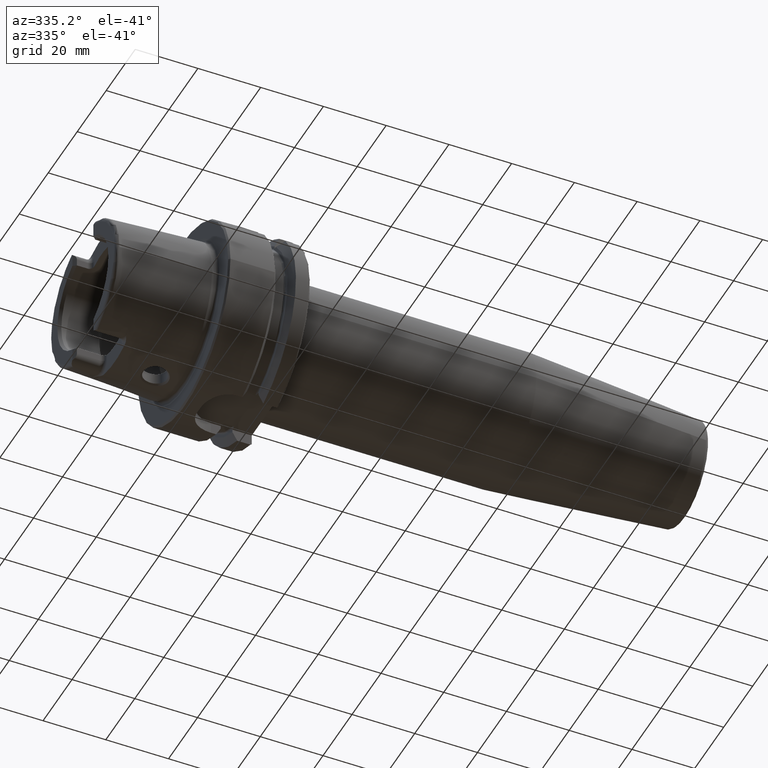
[diagram: clean part render]
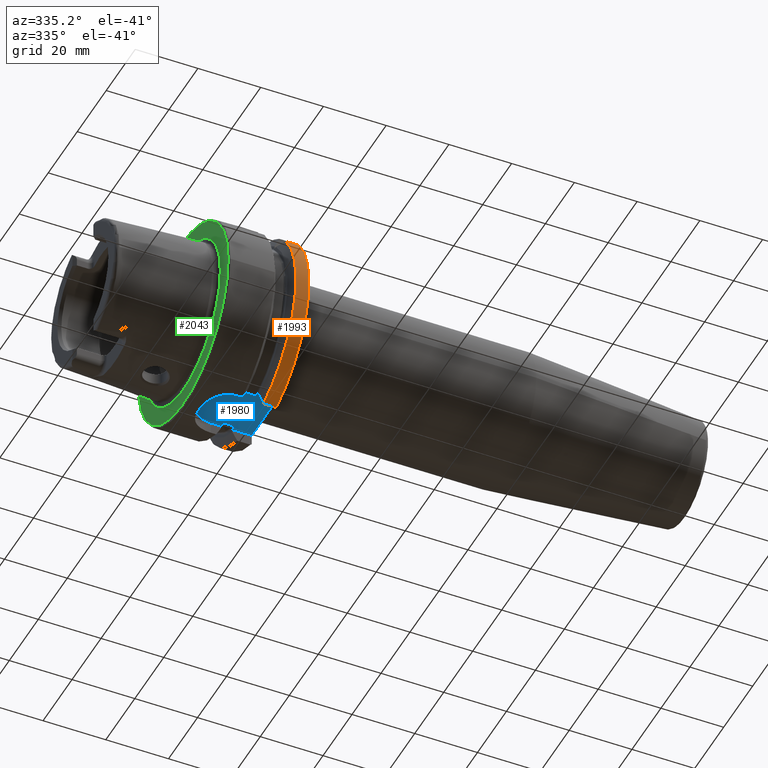
[diagram: same view with three faces highlighted in distinct colors, each labeled with its STEP entity id]
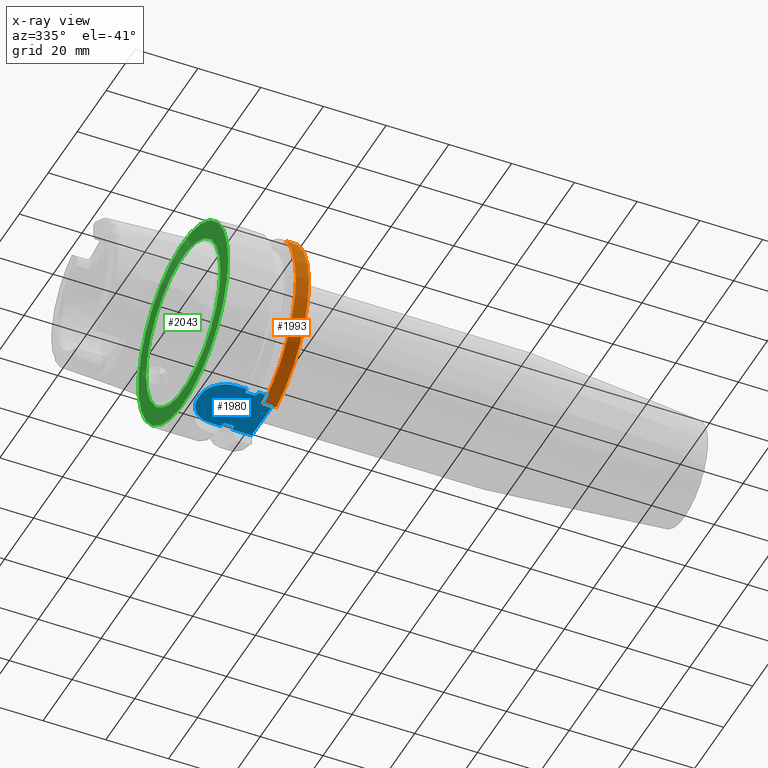
[diagram: x-ray of the same camera — body ghosted, the three highlighted faces saturated]
A machine part, auxiliary view with three faces highlighted in distinct colors.
The next image is the same camera in x-ray (body ghosted, the three faces saturated) — at least one of them is partly hidden behind the body in this view.
Their STEP definitions:

[orange] entity #1993 — the highlighted cylindrical surface (partial cylindrical patch) has radius 31.5 mm, axis along (1, 0, 0).
#191=CYLINDRICAL_SURFACE('',#2209,31.5);
#268=FACE_OUTER_BOUND('',#390,.T.);
#390=EDGE_LOOP('',(#1635,#1636,#1637,#1638));
#495=LINE('',#3754,#601);
#511=LINE('',#3889,#617);
#601=VECTOR('',#2546,10.);
#617=VECTOR('',#2606,10.);
#731=CIRCLE('',#2206,31.5);
#733=CIRCLE('',#2210,31.5);
#887=VERTEX_POINT('',#3749);
#888=VERTEX_POINT('',#3753);
#913=VERTEX_POINT('',#3877);
#914=VERTEX_POINT('',#3888);
#1120=EDGE_CURVE('',#888,#887,#495,.T.);
#1158=EDGE_CURVE('',#914,#913,#511,.T.);
#1203=EDGE_CURVE('',#888,#913,#731,.T.);
#1206=EDGE_CURVE('',#887,#914,#733,.T.);
#1635=ORIENTED_EDGE('',*,*,#1120,.T.);
#1636=ORIENTED_EDGE('',*,*,#1206,.T.);
#1637=ORIENTED_EDGE('',*,*,#1158,.T.);
#1638=ORIENTED_EDGE('',*,*,#1203,.F.);
#1993=ADVANCED_FACE('',(#268),#191,.T.);
#2206=AXIS2_PLACEMENT_3D('',#4094,#2667,#2668);
#2209=AXIS2_PLACEMENT_3D('',#4099,#2674,#2675);
#2210=AXIS2_PLACEMENT_3D('',#4100,#2676,#2677);
#2546=DIRECTION('',(-1.,0.,0.));
#2606=DIRECTION('',(1.,0.,0.));
#2667=DIRECTION('center_axis',(1.,0.,0.));
#2668=DIRECTION('ref_axis',(0.,0.,-1.));
#2674=DIRECTION('center_axis',(1.,0.,0.));
#2675=DIRECTION('ref_axis',(0.,-0.956344671622108,-0.292241114595468));
#2676=DIRECTION('center_axis',(1.,0.,0.));
#2677=DIRECTION('ref_axis',(0.,0.,-1.));
#3749=CARTESIAN_POINT('',(21.3774990747593,-24.3361870472759,20.));
#3753=CARTESIAN_POINT('',(25.5,-24.3361870472759,20.));
#3754=CARTESIAN_POINT('',(23.4387495373797,-24.3361870472759,20.));
#3877=CARTESIAN_POINT('',(25.5,-9.,-30.1869176962472));
#3888=CARTESIAN_POINT('',(21.3774990747593,-9.,-30.1869176962472));
#3889=CARTESIAN_POINT('',(23.4387495373797,-9.,-30.1869176962472));
#4094=CARTESIAN_POINT('Origin',(25.5,0.,0.));
#4099=CARTESIAN_POINT('Origin',(23.4387495373797,0.,0.));
#4100=CARTESIAN_POINT('Origin',(21.3774990747593,0.,0.));

[blue] entity #1980 — the highlighted planar face has unit normal (0, 0, 1).
#67=B_SPLINE_CURVE_WITH_KNOTS('',3,(#3922,#3923,#3924,#3925,#3926,#3927,
#3928,#3929,#3930,#3931),.UNSPECIFIED.,.F.,.F.,(4,2,2,2,4),(0.15835931245442,
0.289228035148658,0.316691561230897,0.323545183976989,0.328785692776271),
 .UNSPECIFIED.);
#68=B_SPLINE_CURVE_WITH_KNOTS('',3,(#3943,#3944,#3945,#3946,#3947,#3948,
#3949,#3950,#3951,#3952),.UNSPECIFIED.,.F.,.F.,(4,2,2,2,4),(0.328785692776271,
0.334026201575553,0.340879824321645,0.368343350403884,0.499212073098123),
 .UNSPECIFIED.);
#69=B_SPLINE_CURVE_WITH_KNOTS('',3,(#3955,#3956,#3957,#3958,#3959,#3960,
#3961,#3962,#3963,#3964),.UNSPECIFIED.,.F.,.F.,(4,2,2,2,4),(0.15835931245442,
0.289228035148658,0.316691561230897,0.323545183976988,0.32878569277627),
 .UNSPECIFIED.);
#70=B_SPLINE_CURVE_WITH_KNOTS('',3,(#3966,#3967,#3968,#3969,#3970,#3971,
#3972,#3973,#3974,#3975),.UNSPECIFIED.,.F.,.F.,(4,2,2,2,4),(0.32878569277627,
0.334026201575552,0.340879824321644,0.368343350403882,0.49921207309812),
 .UNSPECIFIED.);
#129=PLANE('',#2185);
#255=FACE_OUTER_BOUND('',#377,.T.);
#377=EDGE_LOOP('',(#1565,#1566,#1567,#1568,#1569,#1570,#1571,#1572,#1573,
#1574,#1575,#1576,#1577,#1578));
#456=LINE('',#2964,#562);
#510=LINE('',#3876,#616);
#512=LINE('',#3906,#618);
#515=LINE('',#3933,#621);
#516=LINE('',#3937,#622);
#517=LINE('',#3941,#623);
#518=LINE('',#3954,#624);
#519=LINE('',#3976,#625);
#562=VECTOR('',#2371,10.);
#616=VECTOR('',#2605,10.);
#618=VECTOR('',#2609,10.);
#621=VECTOR('',#2614,10.);
#622=VECTOR('',#2617,10.);
#623=VECTOR('',#2620,10.);
#624=VECTOR('',#2621,10.);
#625=VECTOR('',#2622,10.);
#722=CIRCLE('',#2186,8.);
#723=CIRCLE('',#2187,8.);
#801=VERTEX_POINT('',#2961);
#802=VERTEX_POINT('',#2963);
#912=VERTEX_POINT('',#3871);
#916=VERTEX_POINT('',#3905);
#920=VERTEX_POINT('',#3920);
#921=VERTEX_POINT('',#3921);
#922=VERTEX_POINT('',#3932);
#923=VERTEX_POINT('',#3934);
#924=VERTEX_POINT('',#3936);
#925=VERTEX_POINT('',#3938);
#926=VERTEX_POINT('',#3940);
#927=VERTEX_POINT('',#3942);
#928=VERTEX_POINT('',#3953);
#929=VERTEX_POINT('',#3965);
#1008=EDGE_CURVE('',#801,#802,#456,.T.);
#1156=EDGE_CURVE('',#912,#801,#510,.T.);
#1161=EDGE_CURVE('',#802,#916,#512,.T.);
#1166=EDGE_CURVE('',#920,#921,#67,.T.);
#1167=EDGE_CURVE('',#922,#920,#515,.T.);
#1168=EDGE_CURVE('',#923,#922,#722,.T.);
#1169=EDGE_CURVE('',#924,#923,#516,.T.);
#1170=EDGE_CURVE('',#925,#924,#723,.T.);
#1171=EDGE_CURVE('',#926,#925,#517,.T.);
#1172=EDGE_CURVE('',#927,#926,#68,.T.);
#1173=EDGE_CURVE('',#928,#927,#518,.T.);
#1174=EDGE_CURVE('',#916,#928,#69,.T.);
#1175=EDGE_CURVE('',#929,#912,#70,.T.);
#1176=EDGE_CURVE('',#921,#929,#519,.T.);
#1565=ORIENTED_EDGE('',*,*,#1166,.F.);
#1566=ORIENTED_EDGE('',*,*,#1167,.F.);
#1567=ORIENTED_EDGE('',*,*,#1168,.F.);
#1568=ORIENTED_EDGE('',*,*,#1169,.F.);
#1569=ORIENTED_EDGE('',*,*,#1170,.F.);
#1570=ORIENTED_EDGE('',*,*,#1171,.F.);
#1571=ORIENTED_EDGE('',*,*,#1172,.F.);
#1572=ORIENTED_EDGE('',*,*,#1173,.F.);
#1573=ORIENTED_EDGE('',*,*,#1174,.F.);
#1574=ORIENTED_EDGE('',*,*,#1161,.F.);
#1575=ORIENTED_EDGE('',*,*,#1008,.F.);
#1576=ORIENTED_EDGE('',*,*,#1156,.F.);
#1577=ORIENTED_EDGE('',*,*,#1175,.F.);
#1578=ORIENTED_EDGE('',*,*,#1176,.F.);
#1980=ADVANCED_FACE('',(#255),#129,.F.);
#2185=AXIS2_PLACEMENT_3D('',#3919,#2612,#2613);
#2186=AXIS2_PLACEMENT_3D('',#3935,#2615,#2616);
#2187=AXIS2_PLACEMENT_3D('',#3939,#2618,#2619);
#2371=DIRECTION('',(0.,1.,0.));
#2605=DIRECTION('',(1.,-2.56205313375036E-16,0.));
#2609=DIRECTION('',(-1.,2.56205313375036E-16,0.));
#2612=DIRECTION('center_axis',(0.,0.,1.));
#2613=DIRECTION('ref_axis',(1.,0.,0.));
#2614=DIRECTION('',(1.,-2.56205313375036E-16,0.));
#2615=DIRECTION('center_axis',(0.,0.,1.));
#2616=DIRECTION('ref_axis',(-1.,-2.42861286636753E-16,0.));
#2617=DIRECTION('',(0.,-1.,0.));
#2618=DIRECTION('center_axis',(0.,0.,1.));
#2619=DIRECTION('ref_axis',(0.,1.,0.));
#2620=DIRECTION('',(-1.,2.56205313375036E-16,0.));
#2621=DIRECTION('',(-1.,0.,0.));
#2622=DIRECTION('',(1.,0.,0.));
#2961=CARTESIAN_POINT('',(26.,-9.,-26.5));
#2963=CARTESIAN_POINT('',(26.,9.,-26.5));
#2964=CARTESIAN_POINT('',(26.,1.94289029309402E-15,-26.5));
#3871=CARTESIAN_POINT('',(19.8748205133158,-9.,-26.5));
#3876=CARTESIAN_POINT('',(13.,-9.,-26.5));
#3905=CARTESIAN_POINT('',(19.8748205133158,9.,-26.5));
#3906=CARTESIAN_POINT('',(26.,9.,-26.5));
#3919=CARTESIAN_POINT('Origin',(15.5,3.88578058618805E-15,-26.5));
#3920=CARTESIAN_POINT('',(16.1251794866842,-9.,-26.5));
#3921=CARTESIAN_POINT('',(16.625,-7.34846922834952,-26.5));
#3922=CARTESIAN_POINT('Ctrl Pts',(16.1251794866842,-9.,-26.5));
#3923=CARTESIAN_POINT('Ctrl Pts',(16.12898241235,-8.55877260788573,-26.5));
#3924=CARTESIAN_POINT('Ctrl Pts',(16.1819334034884,-8.04136347440828,-26.5));
#3925=CARTESIAN_POINT('Ctrl Pts',(16.3906456489289,-7.5566112023157,-26.5));
#3926=CARTESIAN_POINT('Ctrl Pts',(16.4411490019356,-7.4590543697872,-26.5));
#3927=CARTESIAN_POINT('Ctrl Pts',(16.5270295504762,-7.38349170057081,-26.5));
#3928=CARTESIAN_POINT('Ctrl Pts',(16.5496994821687,-7.36807649661538,-26.5));
#3929=CARTESIAN_POINT('Ctrl Pts',(16.587038394856,-7.35287762173868,-26.5));
#3930=CARTESIAN_POINT('Ctrl Pts',(16.6075316373357,-7.34846922834952,-26.5));
#3931=CARTESIAN_POINT('Ctrl Pts',(16.625,-7.34846922834952,-26.5));
#3932=CARTESIAN_POINT('',(13.,-9.,-26.5));
#3933=CARTESIAN_POINT('',(13.,-9.,-26.5));
#3934=CARTESIAN_POINT('',(5.,-0.999999999999999,-26.5));
#3935=CARTESIAN_POINT('Origin',(13.,-0.999999999999997,-26.5));
#3936=CARTESIAN_POINT('',(5.,1.,-26.5));
#3937=CARTESIAN_POINT('',(5.,1.,-26.5));
#3938=CARTESIAN_POINT('',(13.,9.00000000000001,-26.5));
#3939=CARTESIAN_POINT('Origin',(13.,1.,-26.5));
#3940=CARTESIAN_POINT('',(16.1251794866842,9.,-26.5));
#3941=CARTESIAN_POINT('',(26.,9.,-26.5));
#3942=CARTESIAN_POINT('',(16.625,7.34846922834952,-26.5));
#3943=CARTESIAN_POINT('Ctrl Pts',(16.625,7.34846922834952,-26.5));
#3944=CARTESIAN_POINT('Ctrl Pts',(16.6075316373357,7.34846922834952,-26.5));
#3945=CARTESIAN_POINT('Ctrl Pts',(16.587038394856,7.35287762173868,-26.5));
#3946=CARTESIAN_POINT('Ctrl Pts',(16.5496994821687,7.36807649661538,-26.5));
#3947=CARTESIAN_POINT('Ctrl Pts',(16.5270295504762,7.38349170057081,-26.5));
#3948=CARTESIAN_POINT('Ctrl Pts',(16.4411490019356,7.4590543697872,-26.5));
#3949=CARTESIAN_POINT('Ctrl Pts',(16.3906456489289,7.5566112023157,-26.5));
#3950=CARTESIAN_POINT('Ctrl Pts',(16.1819334034884,8.04136347440828,-26.5));
#3951=CARTESIAN_POINT('Ctrl Pts',(16.12898241235,8.55877260788573,-26.5));
#3952=CARTESIAN_POINT('Ctrl Pts',(16.1251794866842,9.,-26.5));
#3953=CARTESIAN_POINT('',(19.375,7.34846922834952,-26.5));
#3954=CARTESIAN_POINT('',(18.,7.34846922834952,-26.5));
#3955=CARTESIAN_POINT('Ctrl Pts',(19.8748205133158,9.,-26.5));
#3956=CARTESIAN_POINT('Ctrl Pts',(19.87101758765,8.55877260788573,-26.5));
#3957=CARTESIAN_POINT('Ctrl Pts',(19.8180665965116,8.04136347440828,-26.5));
#3958=CARTESIAN_POINT('Ctrl Pts',(19.6093543510711,7.5566112023157,-26.5));
#3959=CARTESIAN_POINT('Ctrl Pts',(19.5588509980644,7.45905436978719,-26.5));
#3960=CARTESIAN_POINT('Ctrl Pts',(19.4729704495238,7.38349170057082,-26.5));
#3961=CARTESIAN_POINT('Ctrl Pts',(19.4503005178313,7.3680764966154,-26.5));
#3962=CARTESIAN_POINT('Ctrl Pts',(19.412961605144,7.35287762173869,-26.5));
#3963=CARTESIAN_POINT('Ctrl Pts',(19.3924683626643,7.34846922834952,-26.5));
#3964=CARTESIAN_POINT('Ctrl Pts',(19.375,7.34846922834952,-26.5));
#3965=CARTESIAN_POINT('',(19.375,-7.34846922834952,-26.5));
#3966=CARTESIAN_POINT('Ctrl Pts',(19.375,-7.34846922834952,-26.5));
#3967=CARTESIAN_POINT('Ctrl Pts',(19.3924683626643,-7.34846922834952,-26.5));
#3968=CARTESIAN_POINT('Ctrl Pts',(19.412961605144,-7.35287762173869,-26.5));
#3969=CARTESIAN_POINT('Ctrl Pts',(19.4503005178313,-7.3680764966154,-26.5));
#3970=CARTESIAN_POINT('Ctrl Pts',(19.4729704495238,-7.38349170057082,-26.5));
#3971=CARTESIAN_POINT('Ctrl Pts',(19.5588509980644,-7.45905436978719,-26.5));
#3972=CARTESIAN_POINT('Ctrl Pts',(19.6093543510711,-7.5566112023157,-26.5));
#3973=CARTESIAN_POINT('Ctrl Pts',(19.8180665965116,-8.04136347440828,-26.5));
#3974=CARTESIAN_POINT('Ctrl Pts',(19.87101758765,-8.55877260788573,-26.5));
#3975=CARTESIAN_POINT('Ctrl Pts',(19.8748205133158,-9.,-26.5));
#3976=CARTESIAN_POINT('',(18.,-7.34846922834952,-26.5));

[green] entity #2043 — the highlighted planar face has unit normal (-1, 0, 0).
#107=FACE_BOUND('',#445,.T.);
#149=PLANE('',#2307);
#318=FACE_OUTER_BOUND('',#444,.T.);
#444=EDGE_LOOP('',(#1896));
#445=EDGE_LOOP('',(#1897));
#780=CIRCLE('',#2306,25.5879092835167);
#781=CIRCLE('',#2308,31.);
#982=VERTEX_POINT('',#4351);
#983=VERTEX_POINT('',#4355);
#1288=EDGE_CURVE('',#982,#982,#780,.T.);
#1289=EDGE_CURVE('',#983,#983,#781,.T.);
#1896=ORIENTED_EDGE('',*,*,#1289,.F.);
#1897=ORIENTED_EDGE('',*,*,#1288,.T.);
#2043=ADVANCED_FACE('',(#318,#107),#149,.T.);
#2306=AXIS2_PLACEMENT_3D('',#4353,#2892,#2893);
#2307=AXIS2_PLACEMENT_3D('',#4354,#2894,#2895);
#2308=AXIS2_PLACEMENT_3D('',#4356,#2896,#2897);
#2892=DIRECTION('center_axis',(1.,0.,0.));
#2893=DIRECTION('ref_axis',(0.,0.,-1.));
#2894=DIRECTION('center_axis',(-1.,0.,0.));
#2895=DIRECTION('ref_axis',(0.,0.,1.));
#2896=DIRECTION('center_axis',(1.,0.,0.));
#2897=DIRECTION('ref_axis',(0.,0.,-1.));
#4351=CARTESIAN_POINT('',(-3.55618312575245E-16,-25.5879092835167,-3.13361512009315E-15));
#4353=CARTESIAN_POINT('Origin',(0.,0.,0.));
#4354=CARTESIAN_POINT('Origin',(0.,31.,0.));
#4355=CARTESIAN_POINT('',(-5.89805981832114E-16,-31.,-3.7964050773568E-15));
#4356=CARTESIAN_POINT('Origin',(0.,0.,0.));